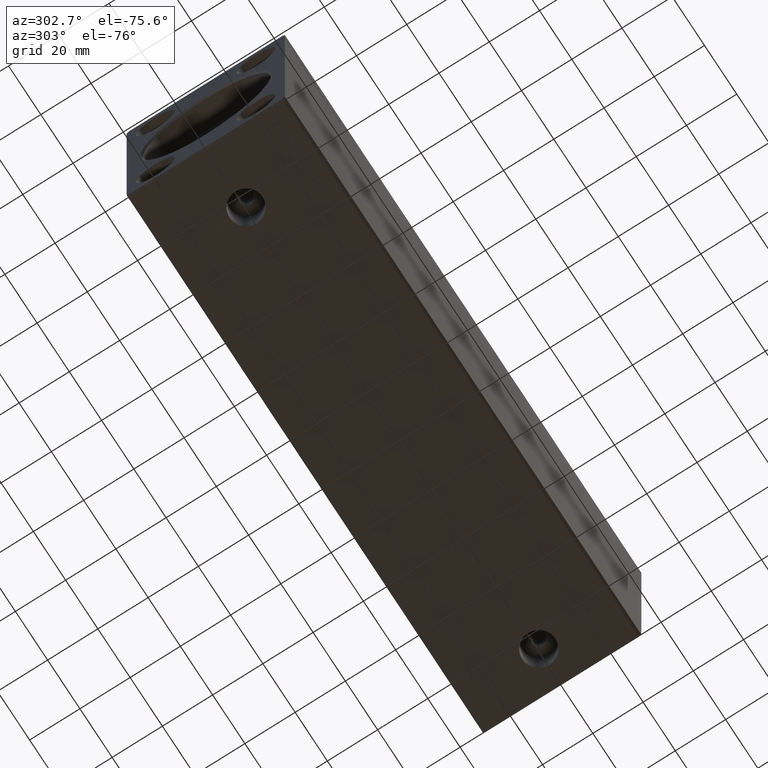
[diagram: clean part render]
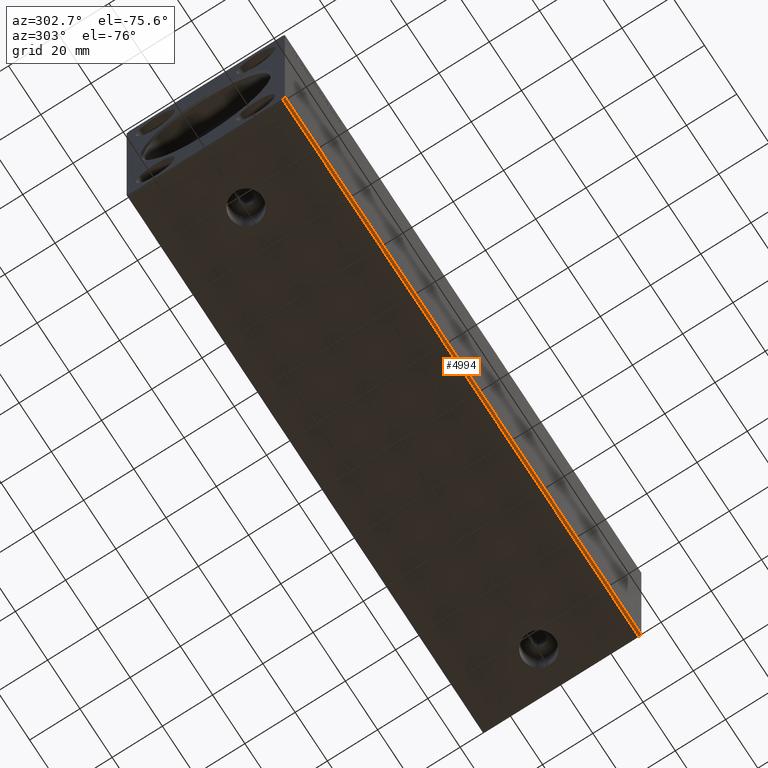
[diagram: same view with one face highlighted and labeled with its STEP entity id]
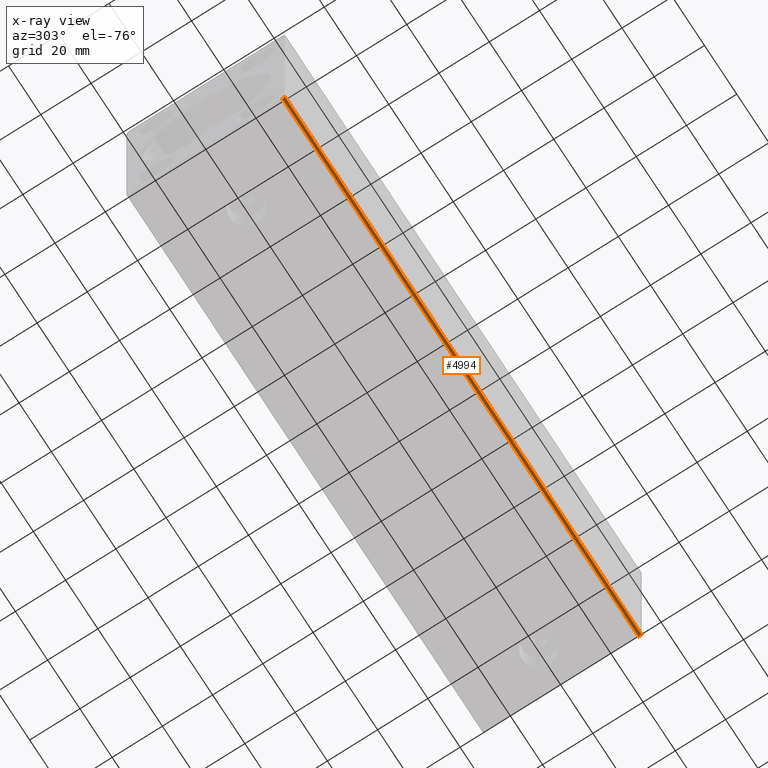
[diagram: x-ray of the same camera — body ghosted, the highlighted face saturated]
A machine part, auxiliary view. The second image highlights one B-rep face of the part: STEP entity #4994.
The next image is the same camera in x-ray: the body ghosted, the highlighted face saturated — about 0% of this face is hidden behind the body in this view.
In plain terms, the highlighted planar face has unit normal (-0, 0.7071, 0.7071).
Its self-contained STEP definition (entity closure, byte-faithful):
#786 = CARTESIAN_POINT ( 'NONE',  ( 221.0000000000000000, -30.50000000000000711, -42.50000000000000711 ) ) ;
#2995 = PLANE ( 'NONE',  #24241 ) ;
#3203 = CARTESIAN_POINT ( 'NONE',  ( 221.0000000000000000, -31.50000000000000000, -41.50000000000000711 ) ) ;
#4281 = CARTESIAN_POINT ( 'NONE',  ( 0.000000000000000000, -30.50000000000000711, -42.50000000000000711 ) ) ;
#4994 = ADVANCED_FACE ( 'NONE', ( #6644 ), #2995, .F. ) ;
#5295 = CARTESIAN_POINT ( 'NONE',  ( 0.000000000000000000, -31.50000000000000000, -41.50000000000000711 ) ) ;
#5632 = ORIENTED_EDGE ( 'NONE', *, *, #26303, .F. ) ;
#6644 = FACE_OUTER_BOUND ( 'NONE', #21268, .T. ) ;
#7244 = CARTESIAN_POINT ( 'NONE',  ( 0.000000000000000000, -31.50000000000000000, -41.50000000000000711 ) ) ;
#7389 = EDGE_CURVE ( 'NONE', #32930, #32675, #17232, .T. ) ;
#8280 = ORIENTED_EDGE ( 'NONE', *, *, #15673, .T. ) ;
#9856 = ORIENTED_EDGE ( 'NONE', *, *, #7389, .F. ) ;
#12742 = VERTEX_POINT ( 'NONE', #7244 ) ;
#12863 = DIRECTION ( 'NONE',  ( -0.000000000000000000, 0.7071067811865500152, 0.7071067811865451302 ) ) ;
#13549 = VECTOR ( 'NONE', #20555, 1000.000000000000000 ) ;
#15673 = EDGE_CURVE ( 'NONE', #32930, #12742, #35979, .T. ) ;
#17232 = LINE ( 'NONE', #30728, #19486 ) ;
#18406 = DIRECTION ( 'NONE',  ( 0.000000000000000000, 0.7071067811865451302, -0.7071067811865500152 ) ) ;
#19247 = DIRECTION ( 'NONE',  ( -1.000000000000000000, -0.000000000000000000, -0.000000000000000000 ) ) ;
#19486 = VECTOR ( 'NONE', #30941, 1000.000000000000114 ) ;
#20555 = DIRECTION ( 'NONE',  ( -1.000000000000000000, -0.000000000000000000, -0.000000000000000000 ) ) ;
#21268 = EDGE_LOOP ( 'NONE', ( #32173, #5632, #9856, #8280 ) ) ;
#22108 = CARTESIAN_POINT ( 'NONE',  ( 221.0000000000000000, -31.50000000000000000, -41.50000000000000711 ) ) ;
#24241 = AXIS2_PLACEMENT_3D ( 'NONE', #3203, #12863, #25969 ) ;
#25969 = DIRECTION ( 'NONE',  ( 0.000000000000000000, -0.7071067811865451302, 0.7071067811865500152 ) ) ;
#26303 = EDGE_CURVE ( 'NONE', #32675, #27089, #27418, .T. ) ;
#27089 = VERTEX_POINT ( 'NONE', #4281 ) ;
#27418 = LINE ( 'NONE', #786, #13549 ) ;
#28895 = CARTESIAN_POINT ( 'NONE',  ( 221.0000000000000000, -31.50000000000000000, -41.50000000000000711 ) ) ;
#29879 = EDGE_CURVE ( 'NONE', #12742, #27089, #31691, .T. ) ;
#30728 = CARTESIAN_POINT ( 'NONE',  ( 221.0000000000000000, -31.50000000000000000, -41.50000000000000711 ) ) ;
#30941 = DIRECTION ( 'NONE',  ( 0.000000000000000000, 0.7071067811865451302, -0.7071067811865500152 ) ) ;
#31216 = VECTOR ( 'NONE', #19247, 1000.000000000000000 ) ;
#31691 = LINE ( 'NONE', #5295, #35591 ) ;
#32173 = ORIENTED_EDGE ( 'NONE', *, *, #29879, .T. ) ;
#32675 = VERTEX_POINT ( 'NONE', #41916 ) ;
#32930 = VERTEX_POINT ( 'NONE', #22108 ) ;
#35591 = VECTOR ( 'NONE', #18406, 1000.000000000000114 ) ;
#35979 = LINE ( 'NONE', #28895, #31216 ) ;
#41916 = CARTESIAN_POINT ( 'NONE',  ( 221.0000000000000000, -30.50000000000000711, -42.50000000000000711 ) ) ;